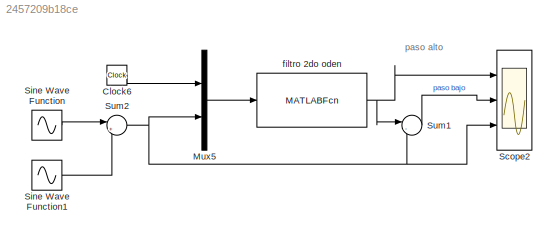
MODEL slx_2457209b18ce
KIND model
CONFIG AbsTol = auto
CONFIG EnableMultiTasking = off
CONFIG FixedStep = Ts
CONFIG InitFcn = GlobalParam;
CONFIG MaxStep = auto
CONFIG MinStep = auto
CONFIG RelTol = 1e-3
CONFIG SampleTimeConstraint = Unconstrained
CONFIG Solver = ode1
CONFIG SolverName = ode1
CONFIG StartTime = 0.0
CONFIG StopTime = 1
BLOCK [Clock] Clock6
BLOCK [Mux] Mux5
  DisplayOption = bar
  Inputs = 2
  Ports = [2, 1]
BLOCK [Scope] Scope2
  NumInputPorts = 3
  Ports = [3]
  ScopeSpecificationString = Simulink.scopes.TimeScopeBlockCfg('CurrentConfiguration', extmgr.ConfigurationSet(extmgr.Configuration('Core','General UI',true),extmgr.Configuration('Core','Source UI',true),extmgr.Configuration('Sources','WiredSimulink',true),extmgr.Configuration('Visuals','Time Domain',true,'SerializedDisplays',{struct('MinYLimReal','-0.18176','MaxYLimReal','0.22327','YLabelReal','','MinYLimMag','0.00000','MaxY...<+2794ch>
BLOCK [Sin] Sine Wave Function
  Frequency = 2*pi*2
  Ports = [0, 1]
  SampleTime = 0
BLOCK [Sin] Sine Wave Function1
  Amplitude = 0.1
  Frequency = 2*pi*150
  Ports = [0, 1]
  SampleTime = 0
BLOCK [Sum] Sum1
  IconShape = round
  InputSameDT = off
  Inputs = |-+
  OutDataTypeStr = Inherit: Inherit via internal rule
  Ports = [2, 1]
  SaturateOnIntegerOverflow = off
BLOCK [Sum] Sum2
  IconShape = round
  InputSameDT = off
  Inputs = |++
  OutDataTypeStr = Inherit: Inherit via internal rule
  Ports = [2, 1]
  SaturateOnIntegerOverflow = off
BLOCK [MATLABFcn] filtro 2do oden 
  MATLABFcn = iir_filter
  OutputDimensions = 1
  Ports = [1, 1]
ANNOTATION (root): paso alto
LINE Clock6:1 -> Mux5:1
LINE Mux5:1 -> filtro 2do oden :1
LINE Sine Wave Function1:1 -> Sum2:2
LINE Sine Wave Function:1 -> Sum2:1
LINE Sum1:1 -> Scope2:2
NET Sum2:1 -> Mux5:2, Scope2:3, Sum1:2
NET filtro 2do oden :1 -> Scope2:1, Sum1:1
note: NET lines group one-source signal fan-out (src -> all destinations, sorted); 1:1 wires keep LINE
